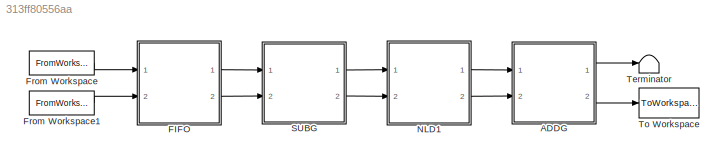
MODEL slx_313ff80556aa
KIND model
CONFIG AbsTol = auto
CONFIG EnableMultiTasking = off
CONFIG FixedStep = auto
CONFIG MaxStep = auto
CONFIG MinStep = auto
CONFIG RelTol = 1e-3
CONFIG SampleTimeConstraint = Unconstrained
CONFIG SolverName = FixedStepDiscrete
CONFIG StartTime = 0.0
CONFIG StopTime = xin.TimeInfo.End
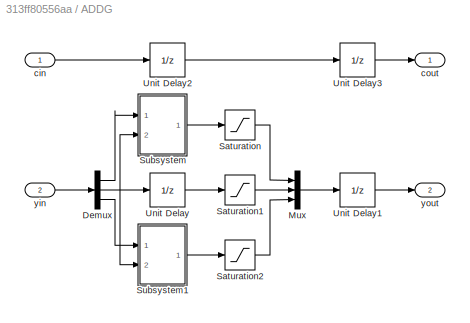
BLOCK [SubSystem] ADDG
  Ports = [2, 2]
  RequestExecContextInheritance = off
BLOCK [Demux] ADDG/Demux
  Outputs = 3
  Ports = [1, 3]
BLOCK [Mux] ADDG/Mux
  DisplayOption = bar
  Inputs = 3
  Ports = [3, 1]
BLOCK [Saturate] ADDG/Saturation
  LowerLimit = intmin('uint8')
  OutDataTypeStr = uint8
  UpperLimit = intmax('uint8')
BLOCK [Saturate] ADDG/Saturation1
  LowerLimit = intmin('uint8')
  OutDataTypeStr = uint8
  UpperLimit = intmax('uint8')
BLOCK [Saturate] ADDG/Saturation2
  LowerLimit = intmin('uint8')
  OutDataTypeStr = uint8
  UpperLimit = intmax('uint8')
BLOCK [SubSystem] ADDG/Subsystem
  Ports = [2, 1]
  ReferencedSubsystem = add2
  RequestExecContextInheritance = off
  TreatAsAtomicUnit = on
BLOCK [SubSystem] ADDG/Subsystem1
  Ports = [2, 1]
  ReferencedSubsystem = add2
  RequestExecContextInheritance = off
  TreatAsAtomicUnit = on
BLOCK [UnitDelay] ADDG/Unit Delay
  HasFrameUpgradeWarning = on
  SampleTime = -1
BLOCK [UnitDelay] ADDG/Unit Delay1
  HasFrameUpgradeWarning = on
  SampleTime = -1
BLOCK [UnitDelay] ADDG/Unit Delay2
  HasFrameUpgradeWarning = on
  SampleTime = -1
BLOCK [UnitDelay] ADDG/Unit Delay3
  HasFrameUpgradeWarning = on
  SampleTime = -1
BLOCK [Inport] ADDG/cin
BLOCK [Outport] ADDG/cout
BLOCK [Inport] ADDG/yin
  Port = 2
BLOCK [Outport] ADDG/yout
  Port = 2
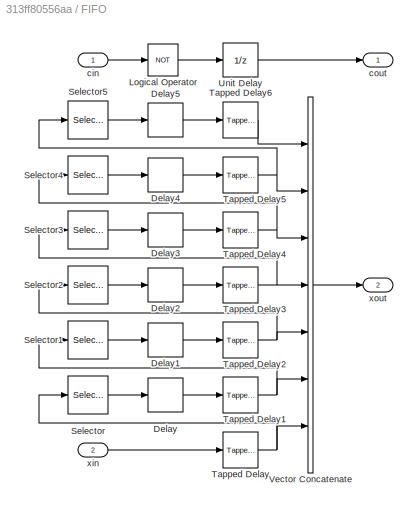
BLOCK [SubSystem] FIFO
  Ports = [2, 2]
  RequestExecContextInheritance = off
BLOCK [Delay] FIFO/Delay
  DelayLength = cols-2
  InputPortMap = u0
  Ports = [1, 1]
  UseCircularBuffer = on
BLOCK [Delay] FIFO/Delay1
  DelayLength = cols-2
  InputPortMap = u0
  Ports = [1, 1]
  UseCircularBuffer = on
BLOCK [Delay] FIFO/Delay2
  DelayLength = cols-2
  InputPortMap = u0
  Ports = [1, 1]
  UseCircularBuffer = on
BLOCK [Delay] FIFO/Delay3
  DelayLength = cols-2
  InputPortMap = u0
  Ports = [1, 1]
  UseCircularBuffer = on
BLOCK [Delay] FIFO/Delay4
  DelayLength = cols-2
  InputPortMap = u0
  Ports = [1, 1]
  UseCircularBuffer = on
BLOCK [Delay] FIFO/Delay5
  DelayLength = cols-2
  InputPortMap = u0
  Ports = [1, 1]
  UseCircularBuffer = on
BLOCK [Logic] FIFO/Logical Operator
  AllPortsSameDT = off
  IconShape = distinctive
  Operator = NOT
  OutDataTypeStr = boolean
  Ports = [1, 1]
BLOCK [Selector] FIFO/Selector
  IndexOptions = Index vector (dialog)
  Indices = 1
  InputPortWidth = 3
  OutputSizes = 1
  Ports = [1, 1]
BLOCK [Selector] FIFO/Selector1
  IndexOptions = Index vector (dialog)
  Indices = 1
  InputPortWidth = 3
  OutputSizes = 1
  Ports = [1, 1]
BLOCK [Selector] FIFO/Selector2
  IndexOptions = Index vector (dialog)
  Indices = 1
  InputPortWidth = 3
  OutputSizes = 1
  Ports = [1, 1]
BLOCK [Selector] FIFO/Selector3
  IndexOptions = Index vector (dialog)
  Indices = 1
  InputPortWidth = 3
  OutputSizes = 1
  Ports = [1, 1]
BLOCK [Selector] FIFO/Selector4
  IndexOptions = Index vector (dialog)
  Indices = 1
  InputPortWidth = 3
  OutputSizes = 1
  Ports = [1, 1]
BLOCK [Selector] FIFO/Selector5
  IndexOptions = Index vector (dialog)
  Indices = 1
  InputPortWidth = 3
  OutputSizes = 1
  Ports = [1, 1]
BLOCK [Reference] FIFO/Tapped Delay  REF=simulink/Discrete/Tapped Delay
  Ports = [1, 1]
  SourceBlock = simulink/Discrete/Tapped Delay
  SourceProductBaseCode = SL
  SourceType = Tapped Delay Line
BLOCK [Reference] FIFO/Tapped Delay1  REF=simulink/Discrete/Tapped Delay
  Ports = [1, 1]
  SourceBlock = simulink/Discrete/Tapped Delay
  SourceProductBaseCode = SL
  SourceType = Tapped Delay Line
BLOCK [Reference] FIFO/Tapped Delay2  REF=simulink/Discrete/Tapped Delay
  Ports = [1, 1]
  SourceBlock = simulink/Discrete/Tapped Delay
  SourceProductBaseCode = SL
  SourceType = Tapped Delay Line
BLOCK [Reference] FIFO/Tapped Delay3  REF=simulink/Discrete/Tapped Delay
  Ports = [1, 1]
  SourceBlock = simulink/Discrete/Tapped Delay
  SourceProductBaseCode = SL
  SourceType = Tapped Delay Line
BLOCK [Reference] FIFO/Tapped Delay4  REF=simulink/Discrete/Tapped Delay
  Ports = [1, 1]
  SourceBlock = simulink/Discrete/Tapped Delay
  SourceProductBaseCode = SL
  SourceType = Tapped Delay Line
BLOCK [Reference] FIFO/Tapped Delay5  REF=simulink/Discrete/Tapped Delay
  Ports = [1, 1]
  SourceBlock = simulink/Discrete/Tapped Delay
  SourceProductBaseCode = SL
  SourceType = Tapped Delay Line
BLOCK [Reference] FIFO/Tapped Delay6  REF=simulink/Discrete/Tapped Delay
  Ports = [1, 1]
  SourceBlock = simulink/Discrete/Tapped Delay
  SourceProductBaseCode = SL
  SourceType = Tapped Delay Line
BLOCK [UnitDelay] FIFO/Unit Delay
  HasFrameUpgradeWarning = on
  SampleTime = -1
BLOCK [Concatenate] FIFO/Vector Concatenate
  ConcatenateDimension = 2
  NumInputs = 7
  Ports = [7, 1]
BLOCK [Inport] FIFO/cin
BLOCK [Outport] FIFO/cout
BLOCK [Inport] FIFO/xin
  Port = 2
BLOCK [Outport] FIFO/xout
  Port = 2
BLOCK [FromWorkspace] From Workspace
  SampleTime = Ts
  VariableName = cin
BLOCK [FromWorkspace] From Workspace1
  SampleTime = Ts
  VariableName = xin
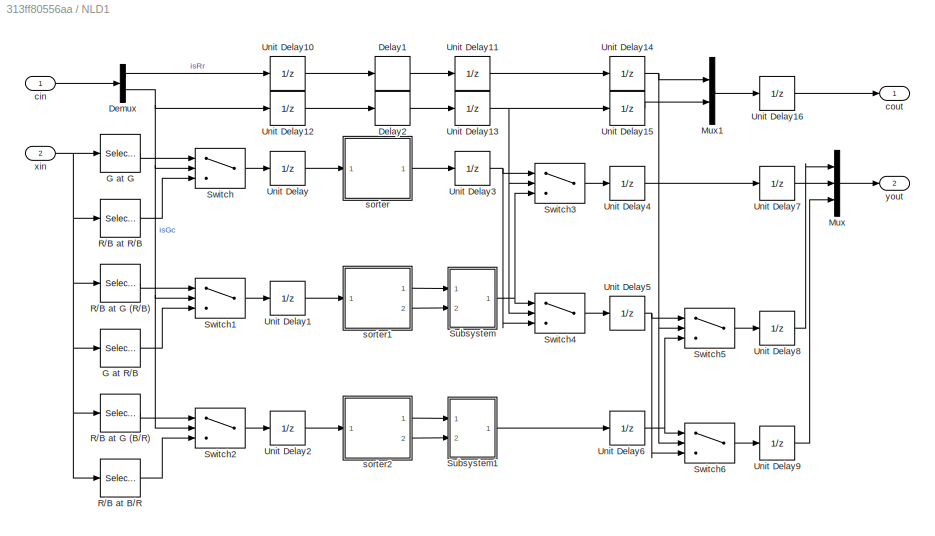
BLOCK [SubSystem] NLD1
  Ports = [2, 2]
  RequestExecContextInheritance = off
BLOCK [Delay] NLD1/Delay1
  DelayLength = 6
  InputPortMap = u0
  Ports = [1, 1]
BLOCK [Delay] NLD1/Delay2
  DelayLength = 6
  InputPortMap = u0
  Ports = [1, 1]
BLOCK [Demux] NLD1/Demux
  Outputs = 2
  Ports = [1, 2]
BLOCK [Selector] NLD1/G at G
  IndexOptions = Index vector (dialog)
  Indices = [7 9 13 13 13 17 19]
  InputPortWidth = 25
  OutputSizes = 1
  Ports = [1, 1]
BLOCK [Selector] NLD1/G at R//B
  IndexOptions = Index vector (dialog)
  Indices = [8 8 12 12 14 14 18 18]
  InputPortWidth = 25
  OutputSizes = 1
  Ports = [1, 1]
BLOCK [Mux] NLD1/Mux
  DisplayOption = bar
  Inputs = 3
  Ports = [3, 1]
BLOCK [Mux] NLD1/Mux1
  DisplayOption = bar
  Inputs = 2
  Ports = [2, 1]
BLOCK [Selector] NLD1/R//B at B//R
  IndexOptions = Index vector (dialog)
  Indices = [7 7 9 9 17 17 19 19]
  InputPortWidth = 25
  OutputSizes = 1
  Ports = [1, 1]
BLOCK [Selector] NLD1/R//B at G (B//R)
  IndexOptions = Index vector (dialog)
  Indices = [6 8 8 10 16 18 18 20]
  InputPortWidth = 25
  OutputSizes = 1
  Ports = [1, 1]
BLOCK [Selector] NLD1/R//B at G (R//B)
  IndexOptions = Index vector (dialog)
  Indices = [2 4 12 12 14 14 22 24]
  InputPortWidth = 25
  OutputSizes = 1
  Ports = [1, 1]
BLOCK [Selector] NLD1/R//B at R//B
  IndexOptions = Index vector (dialog)
  Indices = [3 11 13 13 13 15 23]
  InputPortWidth = 25
  OutputSizes = 1
  Ports = [1, 1]
BLOCK [SubSystem] NLD1/Subsystem
  Ports = [2, 1]
  ReferencedSubsystem = mean2
  RequestExecContextInheritance = off
  TreatAsAtomicUnit = on
BLOCK [SubSystem] NLD1/Subsystem1
  Ports = [2, 1]
  ReferencedSubsystem = mean2
  RequestExecContextInheritance = off
  TreatAsAtomicUnit = on
BLOCK [Switch] NLD1/Switch
  Criteria = u2 ~= 0
  InputSameDT = off
  SaturateOnIntegerOverflow = off
BLOCK [Switch] NLD1/Switch1
  Criteria = u2 ~= 0
  InputSameDT = off
  SaturateOnIntegerOverflow = off
BLOCK [Switch] NLD1/Switch2
  Criteria = u2 ~= 0
  InputSameDT = off
  SaturateOnIntegerOverflow = off
BLOCK [Switch] NLD1/Switch3
  Criteria = u2 ~= 0
  InputSameDT = off
  SaturateOnIntegerOverflow = off
BLOCK [Switch] NLD1/Switch4
  Criteria = u2 ~= 0
  InputSameDT = off
  SaturateOnIntegerOverflow = off
BLOCK [Switch] NLD1/Switch5
  Criteria = u2 ~= 0
  InputSameDT = off
  SaturateOnIntegerOverflow = off
BLOCK [Switch] NLD1/Switch6
  Criteria = u2 ~= 0
  InputSameDT = off
  SaturateOnIntegerOverflow = off
BLOCK [UnitDelay] NLD1/Unit Delay
  HasFrameUpgradeWarning = on
  SampleTime = -1
BLOCK [UnitDelay] NLD1/Unit Delay1
  HasFrameUpgradeWarning = on
  SampleTime = -1
BLOCK [UnitDelay] NLD1/Unit Delay10
  HasFrameUpgradeWarning = on
  SampleTime = -1
BLOCK [UnitDelay] NLD1/Unit Delay11
  HasFrameUpgradeWarning = on
  SampleTime = -1
BLOCK [UnitDelay] NLD1/Unit Delay12
  HasFrameUpgradeWarning = on
  SampleTime = -1
BLOCK [UnitDelay] NLD1/Unit Delay13
  HasFrameUpgradeWarning = on
  SampleTime = -1
BLOCK [UnitDelay] NLD1/Unit Delay14
  HasFrameUpgradeWarning = on
  SampleTime = -1
BLOCK [UnitDelay] NLD1/Unit Delay15
  HasFrameUpgradeWarning = on
  SampleTime = -1
BLOCK [UnitDelay] NLD1/Unit Delay16
  HasFrameUpgradeWarning = on
  SampleTime = -1
BLOCK [UnitDelay] NLD1/Unit Delay2
  HasFrameUpgradeWarning = on
  SampleTime = -1
BLOCK [UnitDelay] NLD1/Unit Delay3
  HasFrameUpgradeWarning = on
  SampleTime = -1
BLOCK [UnitDelay] NLD1/Unit Delay4
  HasFrameUpgradeWarning = on
  SampleTime = -1
BLOCK [UnitDelay] NLD1/Unit Delay5
  HasFrameUpgradeWarning = on
  SampleTime = -1
BLOCK [UnitDelay] NLD1/Unit Delay6
  HasFrameUpgradeWarning = on
  SampleTime = -1
BLOCK [UnitDelay] NLD1/Unit Delay7
  HasFrameUpgradeWarning = on
  SampleTime = -1
BLOCK [UnitDelay] NLD1/Unit Delay8
  HasFrameUpgradeWarning = on
  SampleTime = -1
BLOCK [UnitDelay] NLD1/Unit Delay9
  HasFrameUpgradeWarning = on
  SampleTime = -1
BLOCK [Inport] NLD1/cin
BLOCK [Outport] NLD1/cout
BLOCK [SubSystem] NLD1/sorter
  Ports = [1, 1]
  ReferencedSubsystem = median7
  RequestExecContextInheritance = off
  TreatAsAtomicUnit = on
BLOCK [SubSystem] NLD1/sorter1
  Ports = [1, 2]
  ReferencedSubsystem = median8
  RequestExecContextInheritance = off
  TreatAsAtomicUnit = on
BLOCK [SubSystem] NLD1/sorter2
  Ports = [1, 2]
  ReferencedSubsystem = median8
  RequestExecContextInheritance = off
  TreatAsAtomicUnit = on
BLOCK [Inport] NLD1/xin
  Port = 2
BLOCK [Outport] NLD1/yout
  Port = 2
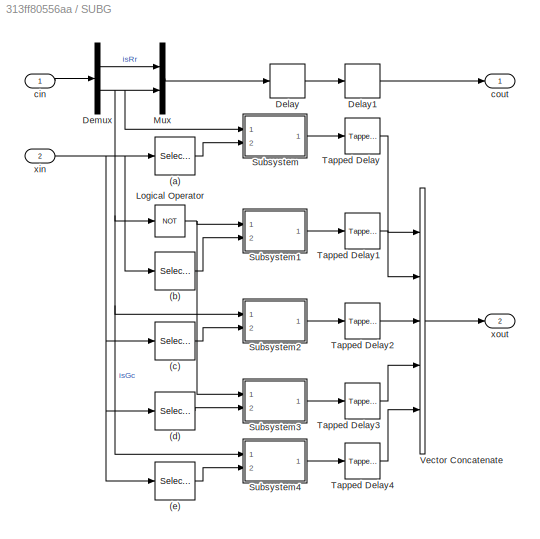
BLOCK [SubSystem] SUBG
  Ports = [2, 2]
  RequestExecContextInheritance = off
BLOCK [Selector] SUBG/(a)
  IndexOptions = Index vector (dialog)
  Indices = [2 4:6 8]
  InputPortWidth = 21
  OutputSizes = 1
  Ports = [1, 1]
BLOCK [Selector] SUBG/(b)
  IndexOptions = Index vector (dialog)
  Indices = [5 7:9 11]
  InputPortWidth = 21
  OutputSizes = 1
  Ports = [1, 1]
BLOCK [Selector] SUBG/(c)
  IndexOptions = Index vector (dialog)
  Indices = [8 10:12 14]
  InputPortWidth = 21
  OutputSizes = 1
  Ports = [1, 1]
BLOCK [Selector] SUBG/(d)
  IndexOptions = Index vector (dialog)
  Indices = [11 13:15 17]
  InputPortWidth = 21
  OutputSizes = 1
  Ports = [1, 1]
BLOCK [Selector] SUBG/(e)
  IndexOptions = Index vector (dialog)
  Indices = [14 16:18 20]
  InputPortWidth = 21
  OutputSizes = 1
  Ports = [1, 1]
BLOCK [Delay] SUBG/Delay
  DelayLength = 5
  InputPortMap = u0
  Ports = [1, 1]
BLOCK [Delay] SUBG/Delay1
  InputPortMap = u0
  Ports = [1, 1]
BLOCK [Demux] SUBG/Demux
  Outputs = 2
  Ports = [1, 2]
BLOCK [Logic] SUBG/Logical Operator
  AllPortsSameDT = off
  IconShape = distinctive
  Operator = NOT
  OutDataTypeStr = boolean
  Ports = [1, 1]
BLOCK [Mux] SUBG/Mux
  DisplayOption = bar
  Inputs = 2
  Ports = [2, 1]
BLOCK [SubSystem] SUBG/Subsystem
  Ports = [2, 1]
  ReferencedSubsystem = subG
  RequestExecContextInheritance = off
BLOCK [SubSystem] SUBG/Subsystem1
  Ports = [2, 1]
  ReferencedSubsystem = subG
  RequestExecContextInheritance = off
BLOCK [SubSystem] SUBG/Subsystem2
  Ports = [2, 1]
  ReferencedSubsystem = subG
  RequestExecContextInheritance = off
BLOCK [SubSystem] SUBG/Subsystem3
  Ports = [2, 1]
  ReferencedSubsystem = subG
  RequestExecContextInheritance = off
BLOCK [SubSystem] SUBG/Subsystem4
  Ports = [2, 1]
  ReferencedSubsystem = subG
  RequestExecContextInheritance = off
BLOCK [Reference] SUBG/Tapped Delay  REF=simulink/Discrete/Tapped Delay
  Ports = [1, 1]
  SourceBlock = simulink/Discrete/Tapped Delay
  SourceProductBaseCode = SL
  SourceType = Tapped Delay Line
BLOCK [Reference] SUBG/Tapped Delay1  REF=simulink/Discrete/Tapped Delay
  Ports = [1, 1]
  SourceBlock = simulink/Discrete/Tapped Delay
  SourceProductBaseCode = SL
  SourceType = Tapped Delay Line
BLOCK [Reference] SUBG/Tapped Delay2  REF=simulink/Discrete/Tapped Delay
  Ports = [1, 1]
  SourceBlock = simulink/Discrete/Tapped Delay
  SourceProductBaseCode = SL
  SourceType = Tapped Delay Line
BLOCK [Reference] SUBG/Tapped Delay3  REF=simulink/Discrete/Tapped Delay
  Ports = [1, 1]
  SourceBlock = simulink/Discrete/Tapped Delay
  SourceProductBaseCode = SL
  SourceType = Tapped Delay Line
BLOCK [Reference] SUBG/Tapped Delay4  REF=simulink/Discrete/Tapped Delay
  Ports = [1, 1]
  SourceBlock = simulink/Discrete/Tapped Delay
  SourceProductBaseCode = SL
  SourceType = Tapped Delay Line
BLOCK [Concatenate] SUBG/Vector Concatenate
  NumInputs = 5
  Ports = [5, 1]
BLOCK [Inport] SUBG/cin
BLOCK [Outport] SUBG/cout
BLOCK [Inport] SUBG/xin
  Port = 2
BLOCK [Outport] SUBG/xout
  Port = 2
BLOCK [Terminator] Terminator
BLOCK [ToWorkspace] To Workspace
  FixptAsFi = on
  MaxDataPoints = inf
  Ports = [1]
  SampleTime = -1
  SaveFormat = Timeseries
  VariableName = yout
LINE ADDG/Demux:1 -> ADDG/Subsystem:1
NET ADDG/Demux:2 -> ADDG/Subsystem1:2, ADDG/Subsystem:2, ADDG/Unit Delay:1
LINE ADDG/Demux:3 -> ADDG/Subsystem1:1
LINE ADDG/Mux:1 -> ADDG/Unit Delay1:1
LINE ADDG/Saturation1:1 -> ADDG/Mux:2
LINE ADDG/Saturation2:1 -> ADDG/Mux:3
LINE ADDG/Saturation:1 -> ADDG/Mux:1
LINE ADDG/Subsystem1:1 -> ADDG/Saturation2:1
LINE ADDG/Subsystem:1 -> ADDG/Saturation:1
LINE ADDG/Unit Delay1:1 -> ADDG/yout:1
LINE ADDG/Unit Delay2:1 -> ADDG/Unit Delay3:1
LINE ADDG/Unit Delay3:1 -> ADDG/cout:1
LINE ADDG/Unit Delay:1 -> ADDG/Saturation1:1
LINE ADDG/cin:1 -> ADDG/Unit Delay2:1
LINE ADDG/yin:1 -> ADDG/Demux:1
LINE ADDG:1 -> Terminator:1
LINE ADDG:2 -> To Workspace:1
LINE FIFO/Delay1:1 -> FIFO/Tapped Delay2:1
LINE FIFO/Delay2:1 -> FIFO/Tapped Delay3:1
LINE FIFO/Delay3:1 -> FIFO/Tapped Delay4:1
LINE FIFO/Delay4:1 -> FIFO/Tapped Delay5:1
LINE FIFO/Delay5:1 -> FIFO/Tapped Delay6:1
LINE FIFO/Delay:1 -> FIFO/Tapped Delay1:1
LINE FIFO/Logical Operator:1 -> FIFO/Unit Delay:1
LINE FIFO/Selector1:1 -> FIFO/Delay1:1
LINE FIFO/Selector2:1 -> FIFO/Delay2:1
LINE FIFO/Selector3:1 -> FIFO/Delay3:1
LINE FIFO/Selector4:1 -> FIFO/Delay4:1
LINE FIFO/Selector5:1 -> FIFO/Delay5:1
LINE FIFO/Selector:1 -> FIFO/Delay:1
NET FIFO/Tapped Delay1:1 -> FIFO/Selector1:1, FIFO/Vector Concatenate:6
NET FIFO/Tapped Delay2:1 -> FIFO/Selector2:1, FIFO/Vector Concatenate:5
NET FIFO/Tapped Delay3:1 -> FIFO/Selector3:1, FIFO/Vector Concatenate:4
NET FIFO/Tapped Delay4:1 -> FIFO/Selector4:1, FIFO/Vector Concatenate:3
NET FIFO/Tapped Delay5:1 -> FIFO/Selector5:1, FIFO/Vector Concatenate:2
LINE FIFO/Tapped Delay6:1 -> FIFO/Vector Concatenate:1
NET FIFO/Tapped Delay:1 -> FIFO/Selector:1, FIFO/Vector Concatenate:7
LINE FIFO/Unit Delay:1 -> FIFO/cout:1
LINE FIFO/Vector Concatenate:1 -> FIFO/xout:1
LINE FIFO/cin:1 -> FIFO/Logical Operator:1
LINE FIFO/xin:1 -> FIFO/Tapped Delay:1
LINE FIFO:1 -> SUBG:1
LINE FIFO:2 -> SUBG:2
LINE From Workspace1:1 -> FIFO:2
LINE From Workspace:1 -> FIFO:1
LINE NLD1/Delay1:1 -> NLD1/Unit Delay11:1
LINE NLD1/Delay2:1 -> NLD1/Unit Delay13:1
LINE NLD1/Demux:1 -> NLD1/Unit Delay10:1
NET NLD1/Demux:2 -> NLD1/Switch1:2, NLD1/Switch2:2, NLD1/Switch:2, NLD1/Unit Delay12:1
LINE NLD1/G at G:1 -> NLD1/Switch:1
LINE NLD1/G at R//B:1 -> NLD1/Switch1:3
LINE NLD1/Mux1:1 -> NLD1/Unit Delay16:1
LINE NLD1/Mux:1 -> NLD1/yout:1
LINE NLD1/R//B at B//R:1 -> NLD1/Switch2:3
LINE NLD1/R//B at G (B//R):1 -> NLD1/Switch2:1
LINE NLD1/R//B at G (R//B):1 -> NLD1/Switch1:1
LINE NLD1/R//B at R//B:1 -> NLD1/Switch:3
LINE NLD1/Subsystem1:1 -> NLD1/Unit Delay6:1
NET NLD1/Subsystem:1 -> NLD1/Switch3:3, NLD1/Switch4:1
LINE NLD1/Switch1:1 -> NLD1/Unit Delay1:1
LINE NLD1/Switch2:1 -> NLD1/Unit Delay2:1
LINE NLD1/Switch3:1 -> NLD1/Unit Delay4:1
LINE NLD1/Switch4:1 -> NLD1/Unit Delay5:1
LINE NLD1/Switch5:1 -> NLD1/Unit Delay8:1
LINE NLD1/Switch6:1 -> NLD1/Unit Delay9:1
LINE NLD1/Switch:1 -> NLD1/Unit Delay:1
LINE NLD1/Unit Delay10:1 -> NLD1/Delay1:1
LINE NLD1/Unit Delay11:1 -> NLD1/Unit Delay14:1
LINE NLD1/Unit Delay12:1 -> NLD1/Delay2:1
NET NLD1/Unit Delay13:1 -> NLD1/Switch3:2, NLD1/Switch4:2, NLD1/Unit Delay15:1
NET NLD1/Unit Delay14:1 -> NLD1/Mux1:1, NLD1/Switch5:2, NLD1/Switch6:2
LINE NLD1/Unit Delay15:1 -> NLD1/Mux1:2
LINE NLD1/Unit Delay16:1 -> NLD1/cout:1
LINE NLD1/Unit Delay1:1 -> NLD1/sorter1:1
LINE NLD1/Unit Delay2:1 -> NLD1/sorter2:1
NET NLD1/Unit Delay3:1 -> NLD1/Switch3:1, NLD1/Switch4:3
LINE NLD1/Unit Delay4:1 -> NLD1/Unit Delay7:1
NET NLD1/Unit Delay5:1 -> NLD1/Switch5:1, NLD1/Switch6:3
NET NLD1/Unit Delay6:1 -> NLD1/Switch5:3, NLD1/Switch6:1
LINE NLD1/Unit Delay7:1 -> NLD1/Mux:2
LINE NLD1/Unit Delay8:1 -> NLD1/Mux:1
LINE NLD1/Unit Delay9:1 -> NLD1/Mux:3
LINE NLD1/Unit Delay:1 -> NLD1/sorter:1
LINE NLD1/cin:1 -> NLD1/Demux:1
LINE NLD1/sorter1:1 -> NLD1/Subsystem:1
LINE NLD1/sorter1:2 -> NLD1/Subsystem:2
LINE NLD1/sorter2:1 -> NLD1/Subsystem1:1
LINE NLD1/sorter2:2 -> NLD1/Subsystem1:2
LINE NLD1/sorter:1 -> NLD1/Unit Delay3:1
NET NLD1/xin:1 -> NLD1/G at G:1, NLD1/G at R//B:1, NLD1/R//B at B//R:1, NLD1/R//B at G (B//R):1, NLD1/R//B at G (R//B):1, NLD1/R//B at R//B:1
LINE NLD1:1 -> ADDG:1
LINE NLD1:2 -> ADDG:2
LINE SUBG/(a):1 -> SUBG/Subsystem:2
LINE SUBG/(b):1 -> SUBG/Subsystem1:2
LINE SUBG/(c):1 -> SUBG/Subsystem2:2
LINE SUBG/(d):1 -> SUBG/Subsystem3:2
LINE SUBG/(e):1 -> SUBG/Subsystem4:2
LINE SUBG/Delay1:1 -> SUBG/cout:1
LINE SUBG/Delay:1 -> SUBG/Delay1:1
LINE SUBG/Demux:1 -> SUBG/Mux:1
NET SUBG/Demux:2 -> SUBG/Logical Operator:1, SUBG/Mux:2, SUBG/Subsystem2:1, SUBG/Subsystem4:1, SUBG/Subsystem:1
NET SUBG/Logical Operator:1 -> SUBG/Subsystem1:1, SUBG/Subsystem3:1
LINE SUBG/Mux:1 -> SUBG/Delay:1
LINE SUBG/Subsystem1:1 -> SUBG/Tapped Delay1:1
LINE SUBG/Subsystem2:1 -> SUBG/Tapped Delay2:1
LINE SUBG/Subsystem3:1 -> SUBG/Tapped Delay3:1
LINE SUBG/Subsystem4:1 -> SUBG/Tapped Delay4:1
LINE SUBG/Subsystem:1 -> SUBG/Tapped Delay:1
LINE SUBG/Tapped Delay1:1 -> SUBG/Vector Concatenate:2
LINE SUBG/Tapped Delay2:1 -> SUBG/Vector Concatenate:3
LINE SUBG/Tapped Delay3:1 -> SUBG/Vector Concatenate:4
LINE SUBG/Tapped Delay4:1 -> SUBG/Vector Concatenate:5
LINE SUBG/Tapped Delay:1 -> SUBG/Vector Concatenate:1
LINE SUBG/Vector Concatenate:1 -> SUBG/xout:1
LINE SUBG/cin:1 -> SUBG/Demux:1
NET SUBG/xin:1 -> SUBG/(a):1, SUBG/(b):1, SUBG/(c):1, SUBG/(d):1, SUBG/(e):1
LINE SUBG:1 -> NLD1:1
LINE SUBG:2 -> NLD1:2
note: NET lines group one-source signal fan-out (src -> all destinations, sorted); 1:1 wires keep LINE
